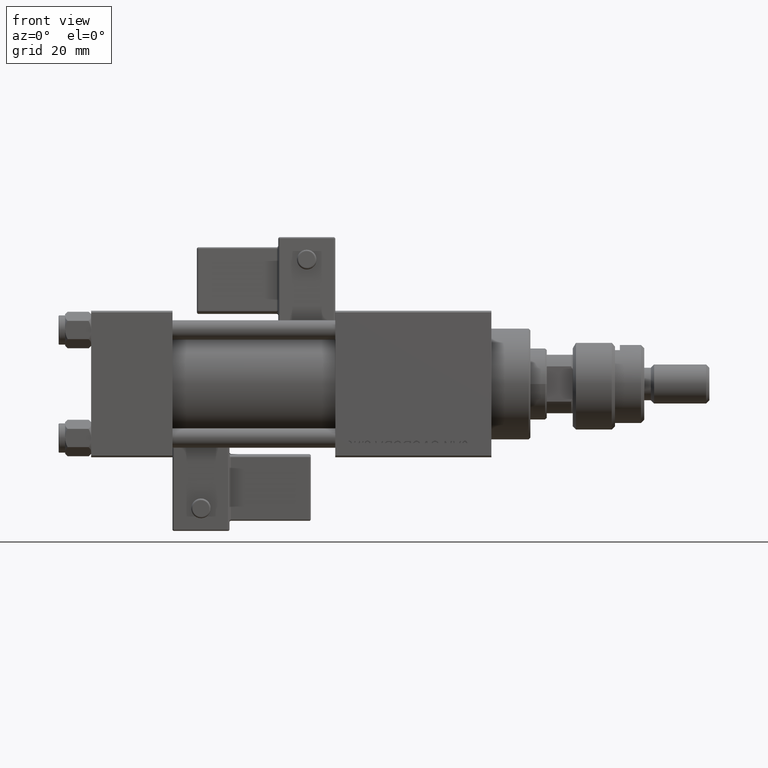
[diagram: clean part render]
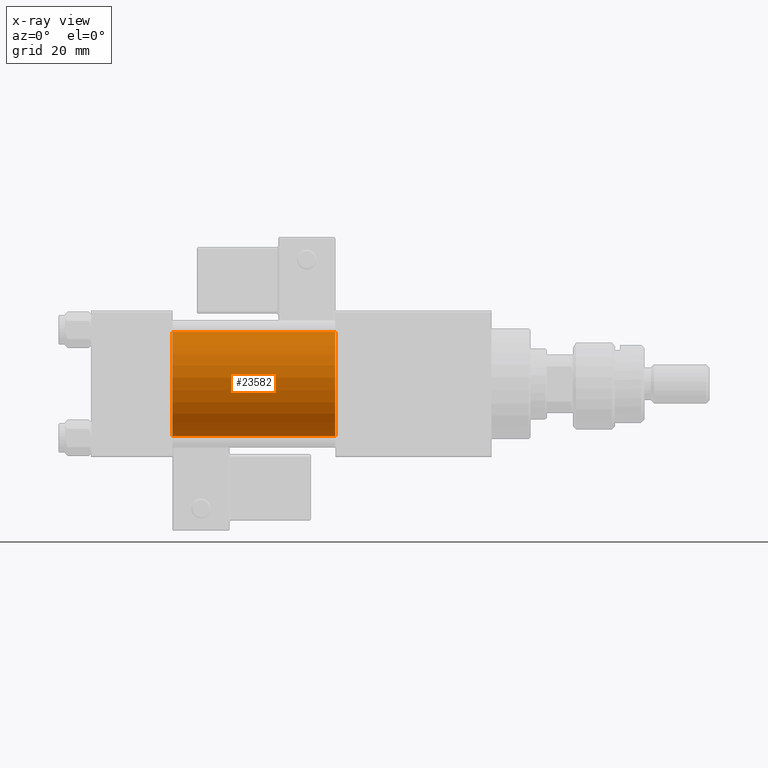
[diagram: x-ray — body ghosted, one internal face saturated and labeled with its STEP entity id]
A machine part, front view, then the same camera in x-ray: the body is ghosted and one INTERNAL B-rep face — a face not visible from any outside direction — is saturated and labeled: STEP entity #23582.
In plain terms, the highlighted cylindrical surface (partial cylindrical patch) has radius 16 mm, axis along (-1, -0, -0).
Its self-contained STEP definition (entity closure, byte-faithful):
#654 = EDGE_CURVE ( 'NONE', #53007, #42361, #20793, .T. ) ;
#2115 = CARTESIAN_POINT ( 'NONE',  ( 75.00000000000001421, -2.602085213965210642E-15, 16.00000000000000000 ) ) ;
#3485 = AXIS2_PLACEMENT_3D ( 'NONE', #41002, #8087, #28509 ) ;
#3976 = DIRECTION ( 'NONE',  ( 1.000000000000000000, 0.000000000000000000, 0.000000000000000000 ) ) ;
#4244 = DIRECTION ( 'NONE',  ( 0.000000000000000000, 0.000000000000000000, -1.000000000000000000 ) ) ;
#4563 = VECTOR ( 'NONE', #25675, 1000.000000000000000 ) ;
#5918 = DIRECTION ( 'NONE',  ( -1.000000000000000000, -0.000000000000000000, -0.000000000000000000 ) ) ;
#8087 = DIRECTION ( 'NONE',  ( -1.000000000000000000, -0.000000000000000000, -0.000000000000000000 ) ) ;
#8130 = CARTESIAN_POINT ( 'NONE',  ( 75.00000000000001421, -2.602085213965210642E-15, 16.00000000000000000 ) ) ;
#9324 = CARTESIAN_POINT ( 'NONE',  ( 75.00000000000001421, -6.426503353294456087E-16, -16.00000000000000000 ) ) ;
#13419 = LINE ( 'NONE', #9324, #4563 ) ;
#16588 = AXIS2_PLACEMENT_3D ( 'NONE', #33073, #3976, #4244 ) ;
#18436 = LINE ( 'NONE', #2115, #37306 ) ;
#20793 = CIRCLE ( 'NONE', #24296, 16.00000000000000000 ) ;
#23582 = ADVANCED_FACE ( 'NONE', ( #32851 ), #48908, .F. ) ;
#23605 = DIRECTION ( 'NONE',  ( 1.000000000000000000, 0.000000000000000000, 0.000000000000000000 ) ) ;
#24296 = AXIS2_PLACEMENT_3D ( 'NONE', #31745, #23605, #36633 ) ;
#25675 = DIRECTION ( 'NONE',  ( -1.000000000000000000, -0.000000000000000000, -0.000000000000000000 ) ) ;
#26441 = EDGE_CURVE ( 'NONE', #40359, #34429, #48755, .T. ) ;
#28509 = DIRECTION ( 'NONE',  ( 0.000000000000000000, 0.000000000000000000, 1.000000000000000000 ) ) ;
#29144 = EDGE_CURVE ( 'NONE', #34429, #42361, #13419, .T. ) ;
#31745 = CARTESIAN_POINT ( 'NONE',  ( 25.00000000000000000, -2.602085213965210642E-15, 0.000000000000000000 ) ) ;
#32851 = FACE_OUTER_BOUND ( 'NONE', #46787, .T. ) ;
#33073 = CARTESIAN_POINT ( 'NONE',  ( 75.00000000000001421, -2.602085213965210642E-15, 0.000000000000000000 ) ) ;
#33179 = ORIENTED_EDGE ( 'NONE', *, *, #26441, .T. ) ;
#34429 = VERTEX_POINT ( 'NONE', #42318 ) ;
#36633 = DIRECTION ( 'NONE',  ( 0.000000000000000000, 0.000000000000000000, -1.000000000000000000 ) ) ;
#37306 = VECTOR ( 'NONE', #5918, 1000.000000000000000 ) ;
#39478 = CARTESIAN_POINT ( 'NONE',  ( 25.00000000000000000, -6.426503353294456087E-16, -16.00000000000000000 ) ) ;
#39750 = EDGE_CURVE ( 'NONE', #40359, #53007, #18436, .T. ) ;
#40359 = VERTEX_POINT ( 'NONE', #8130 ) ;
#40370 = ORIENTED_EDGE ( 'NONE', *, *, #29144, .T. ) ;
#41002 = CARTESIAN_POINT ( 'NONE',  ( 75.00000000000001421, -2.602085213965210642E-15, 0.000000000000000000 ) ) ;
#41346 = CARTESIAN_POINT ( 'NONE',  ( 25.00000000000000000, -2.602085213965210642E-15, 16.00000000000000000 ) ) ;
#41360 = ORIENTED_EDGE ( 'NONE', *, *, #39750, .F. ) ;
#42318 = CARTESIAN_POINT ( 'NONE',  ( 75.00000000000001421, -6.426503353294456087E-16, -16.00000000000000000 ) ) ;
#42361 = VERTEX_POINT ( 'NONE', #39478 ) ;
#43238 = ORIENTED_EDGE ( 'NONE', *, *, #654, .F. ) ;
#46787 = EDGE_LOOP ( 'NONE', ( #33179, #40370, #43238, #41360 ) ) ;
#48755 = CIRCLE ( 'NONE', #16588, 16.00000000000000000 ) ;
#48908 = CYLINDRICAL_SURFACE ( 'NONE', #3485, 16.00000000000000000 ) ;
#53007 = VERTEX_POINT ( 'NONE', #41346 ) ;